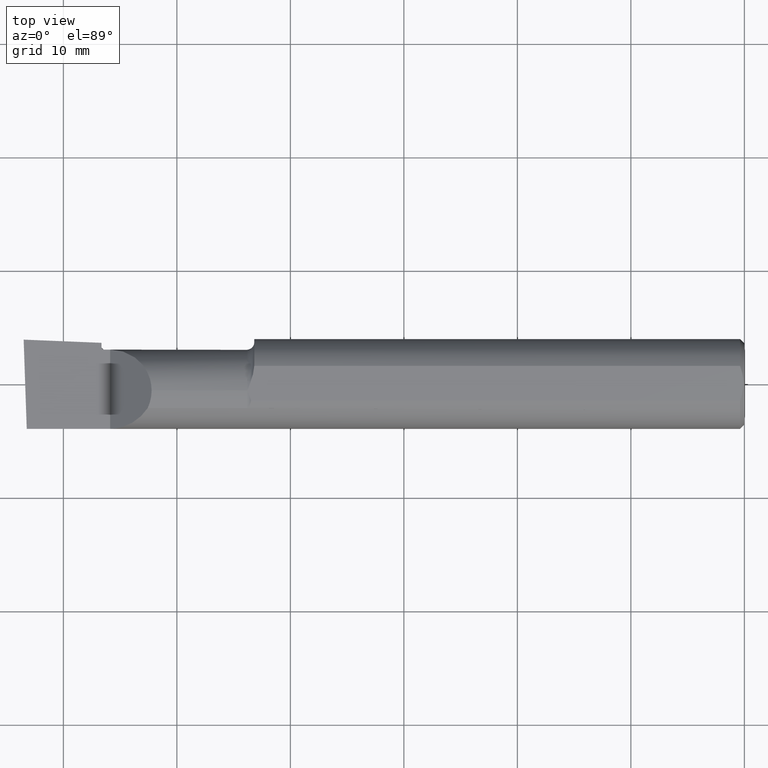
[diagram: clean part render]
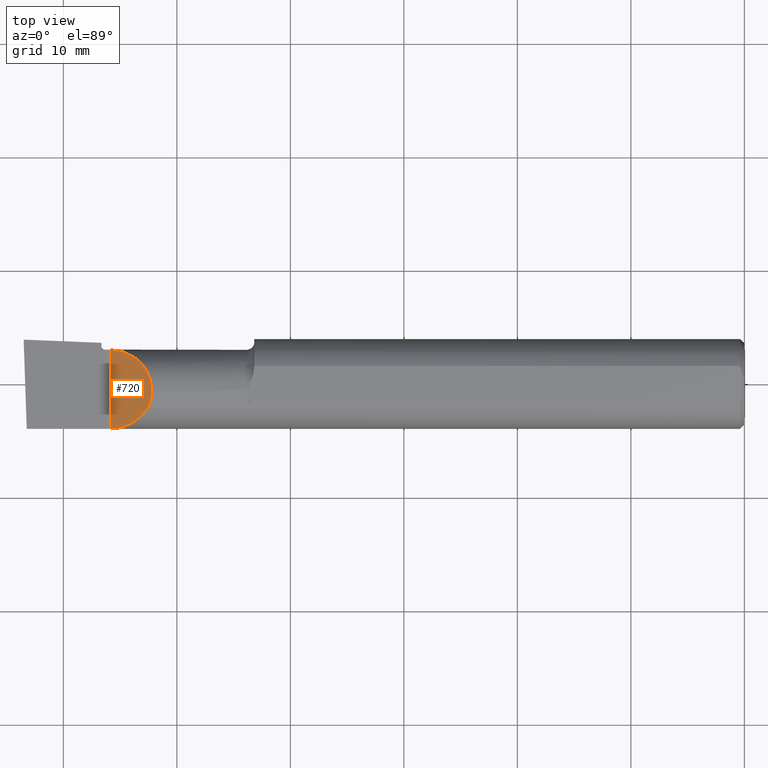
[diagram: same view with one face highlighted and labeled with its STEP entity id]
A machine part, top view. The second image highlights one B-rep face of the part: STEP entity #720.
In plain terms, the highlighted planar face has unit normal (0.7071, 0, -0.7071).
Its self-contained STEP definition (entity closure, byte-faithful):
#5 = AXIS2_PLACEMENT_3D ( 'NONE', #95, #143, #653 ) ;
#11 = CARTESIAN_POINT ( 'NONE',  ( -2.069528853764518228, -0.08569999999999516893, 0.1304711462354827267 ) ) ;
#73 = CARTESIAN_POINT ( 'NONE',  ( -2.056100000000001149, -0.04605394310600462171, 0.1439000000000001389 ) ) ;
#86 = ORIENTED_EDGE ( 'NONE', *, *, #159, .F. ) ;
#95 = CARTESIAN_POINT ( 'NONE',  ( -2.199999999999999289, 0.1560999999999999888, 3.826894855694925850E-18 ) ) ;
#140 = PLANE ( 'NONE',  #5 ) ;
#143 = DIRECTION ( 'NONE',  ( 0.7071067811865515695, 0.000000000000000000, -0.7071067811865434649 ) ) ;
#156 = ORIENTED_EDGE ( 'NONE', *, *, #629, .F. ) ;
#157 = CARTESIAN_POINT ( 'NONE',  ( -2.099017382551543243, -0.1305938407426031900, 0.1009826174484572542 ) ) ;
#159 = EDGE_CURVE ( 'NONE', #427, #372, #359, .T. ) ;
#182 = CARTESIAN_POINT ( 'NONE',  ( -2.199999999999999289, -0.1560999999999999888, 3.826894855694925850E-18 ) ) ;
#233 =( BOUNDED_CURVE ( )  B_SPLINE_CURVE ( 3, ( #435, #157, #551, #388 ),
 .UNSPECIFIED., .F., .F. ) 
 B_SPLINE_CURVE_WITH_KNOTS ( ( 4, 4 ),
 ( 0.5811757715714180872, 1.570796326794896558 ),
 .UNSPECIFIED. ) 
 CURVE ( )  GEOMETRIC_REPRESENTATION_ITEM ( )  RATIONAL_B_SPLINE_CURVE ( ( 1.000000000000000000, 0.9200392120919920202, 0.9200392120919920202, 1.000000000000000000 ) ) 
 REPRESENTATION_ITEM ( '' )  );
#240 = ORIENTED_EDGE ( 'NONE', *, *, #345, .F. ) ;
#259 = CARTESIAN_POINT ( 'NONE',  ( -2.056100000000001149, -0.02500000000000000486, 0.1439000000000001389 ) ) ;
#271 = CARTESIAN_POINT ( 'NONE',  ( -2.115705331625488572, 0.1189000000000001445, 0.08429466837451166095 ) ) ;
#304 = FACE_OUTER_BOUND ( 'NONE', #549, .T. ) ;
#318 = CARTESIAN_POINT ( 'NONE',  ( -2.069528853764518228, -0.08569999999999516893, 0.1304711462354827267 ) ) ;
#336 = EDGE_CURVE ( 'NONE', #412, #427, #413, .T. ) ;
#345 = EDGE_CURVE ( 'NONE', #372, #652, #233, .T. ) ;
#359 =( BOUNDED_CURVE ( )  B_SPLINE_CURVE ( 3, ( #532, #73, #712, #11 ),
 .UNSPECIFIED., .F., .F. ) 
 B_SPLINE_CURVE_WITH_KNOTS ( ( 4, 4 ),
 ( 0.000000000000000000, 0.4354524910905208102 ),
 .UNSPECIFIED. ) 
 CURVE ( )  GEOMETRIC_REPRESENTATION_ITEM ( )  RATIONAL_B_SPLINE_CURVE ( ( 1.000000000000000000, 0.9842607512044769802, 0.9842607512044769802, 1.000000000000000000 ) ) 
 REPRESENTATION_ITEM ( '' )  );
#372 = VERTEX_POINT ( 'NONE', #318 ) ;
#388 = CARTESIAN_POINT ( 'NONE',  ( -2.199999999999999289, -0.1560999999999999888, 3.826894855694925850E-18 ) ) ;
#409 = ORIENTED_EDGE ( 'NONE', *, *, #336, .F. ) ;
#412 = VERTEX_POINT ( 'NONE', #732 ) ;
#413 =( BOUNDED_CURVE ( )  B_SPLINE_CURVE ( 3, ( #611, #271, #505, #432 ),
 .UNSPECIFIED., .F., .T. ) 
 B_SPLINE_CURVE_WITH_KNOTS ( ( 4, 4 ),
 ( 4.712388980384689674, 6.283185307179586232 ),
 .UNSPECIFIED. ) 
 CURVE ( )  GEOMETRIC_REPRESENTATION_ITEM ( )  RATIONAL_B_SPLINE_CURVE ( ( 1.000000000000000000, 0.8047378541243649375, 0.8047378541243649375, 1.000000000000000000 ) ) 
 REPRESENTATION_ITEM ( '' )  );
#422 = DIRECTION ( 'NONE',  ( 0.000000000000000000, 1.000000000000000000, 0.000000000000000000 ) ) ;
#425 = LINE ( 'NONE', #482, #616 ) ;
#427 = VERTEX_POINT ( 'NONE', #259 ) ;
#432 = CARTESIAN_POINT ( 'NONE',  ( -2.056100000000001149, -0.02500000000000000486, 0.1439000000000001389 ) ) ;
#435 = CARTESIAN_POINT ( 'NONE',  ( -2.069528853764518228, -0.08569999999999516893, 0.1304711462354827267 ) ) ;
#482 = CARTESIAN_POINT ( 'NONE',  ( -2.199999999999999289, 0.1560999999999999888, 3.826894855694925850E-18 ) ) ;
#505 = CARTESIAN_POINT ( 'NONE',  ( -2.056100000000001149, 0.05929466837451168731, 0.1439000000000001112 ) ) ;
#532 = CARTESIAN_POINT ( 'NONE',  ( -2.056100000000001149, -0.02500000000000000486, 0.1439000000000001389 ) ) ;
#549 = EDGE_LOOP ( 'NONE', ( #409, #156, #240, #86 ) ) ;
#551 = CARTESIAN_POINT ( 'NONE',  ( -2.146287522244399781, -0.1560999999999999888, 0.05371247775560051424 ) ) ;
#611 = CARTESIAN_POINT ( 'NONE',  ( -2.199999999999999289, 0.1189000000000001306, 3.826894855694925850E-18 ) ) ;
#616 = VECTOR ( 'NONE', #422, 39.37007874015748143 ) ;
#629 = EDGE_CURVE ( 'NONE', #652, #412, #425, .T. ) ;
#652 = VERTEX_POINT ( 'NONE', #182 ) ;
#653 = DIRECTION ( 'NONE',  ( 0.000000000000000000, 1.000000000000000000, 0.000000000000000000 ) ) ;
#712 = CARTESIAN_POINT ( 'NONE',  ( -2.060647864559971509, -0.06661082633900096417, 0.1393521354400298062 ) ) ;
#720 = ADVANCED_FACE ( 'NONE', ( #304 ), #140, .F. ) ;
#732 = CARTESIAN_POINT ( 'NONE',  ( -2.199999999999999289, 0.1189000000000001306, 3.826894855694925850E-18 ) ) ;